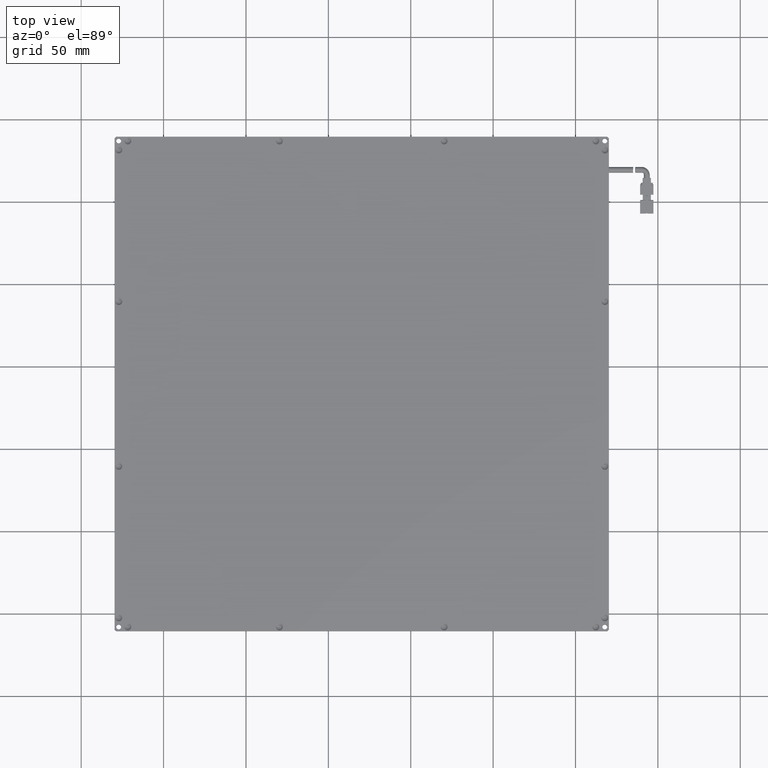
[diagram: clean part render]
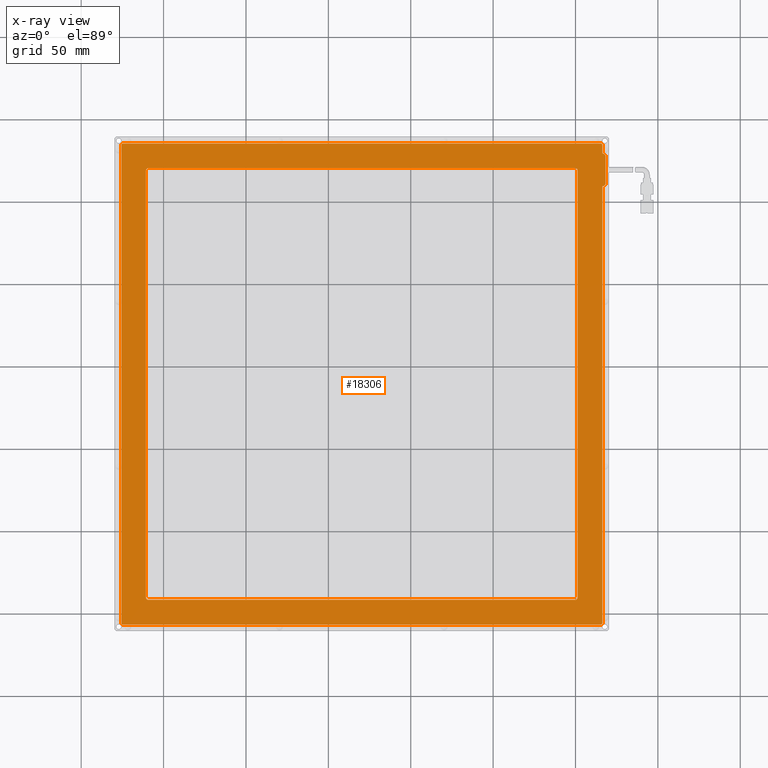
[diagram: x-ray — body ghosted, one internal face saturated and labeled with its STEP entity id]
A machine part, top view, then the same camera in x-ray: the body is ghosted and one INTERNAL B-rep face — a face not visible from any outside direction — is saturated and labeled: STEP entity #18306.
In plain terms, the highlighted planar face has unit normal (-0, 0, 1).
Its self-contained STEP definition (entity closure, byte-faithful):
#101 = DIRECTION ( 'NONE',  ( 1.191794754487883100E-016, -1.000000000000000000, -0.0000000000000000000 ) ) ;
#323 = CARTESIAN_POINT ( 'NONE',  ( -175.7273477157360200, -105.5461928934010400, -1.200000000000067900 ) ) ;
#350 = CARTESIAN_POINT ( 'NONE',  ( -174.7273477157360400, 184.4538071065989300, -1.200000000000067900 ) ) ;
#490 = DIRECTION ( 'NONE',  ( -0.0000000000000000000, 0.0000000000000000000, -1.000000000000000000 ) ) ;
#542 = VERTEX_POINT ( 'NONE', #8725 ) ;
#630 = EDGE_CURVE ( 'NONE', #7839, #13146, #11051, .T. ) ;
#916 = DIRECTION ( 'NONE',  ( -0.0000000000000000000, -1.000000000000000000, 0.0000000000000000000 ) ) ;
#1077 = VECTOR ( 'NONE', #1782, 1000.000000000000000 ) ;
#1269 = VERTEX_POINT ( 'NONE', #5665 ) ;
#1673 = CARTESIAN_POINT ( 'NONE',  ( 116.2726522842640100, 177.4538071065989600, -1.200000000000069000 ) ) ;
#1742 = VECTOR ( 'NONE', #2682, 1000.000000000000000 ) ;
#1782 = DIRECTION ( 'NONE',  ( 0.0000000000000000000, 1.000000000000000000, -0.0000000000000000000 ) ) ;
#1831 = CARTESIAN_POINT ( 'NONE',  ( 116.2726522842640100, 159.4538071065989000, -1.200000000000068800 ) ) ;
#1837 = DIRECTION ( 'NONE',  ( -1.000000000000000000, 0.0000000000000000000, 0.0000000000000000000 ) ) ;
#1974 = EDGE_CURVE ( 'NONE', #16636, #6717, #18297, .T. ) ;
#2157 = ORIENTED_EDGE ( 'NONE', *, *, #10287, .F. ) ;
#2198 = LINE ( 'NONE', #4165, #1742 ) ;
#2565 = CARTESIAN_POINT ( 'NONE',  ( -159.2273477157360400, 168.9538071065989000, -1.200000000000068100 ) ) ;
#2682 = DIRECTION ( 'NONE',  ( -2.118746230200680700E-016, 1.000000000000000000, -0.0000000000000000000 ) ) ;
#2866 = DIRECTION ( 'NONE',  ( -1.000000000000000000, -0.0000000000000000000, -0.0000000000000000000 ) ) ;
#2965 = VERTEX_POINT ( 'NONE', #16450 ) ;
#3059 = EDGE_CURVE ( 'NONE', #10920, #14318, #9591, .T. ) ;
#3104 = DIRECTION ( 'NONE',  ( 1.000000000000000000, 0.0000000000000000000, 0.0000000000000000000 ) ) ;
#3110 = EDGE_CURVE ( 'NONE', #3501, #5542, #8206, .T. ) ;
#3183 = ORIENTED_EDGE ( 'NONE', *, *, #3285, .T. ) ;
#3185 = VECTOR ( 'NONE', #101, 1000.000000000000000 ) ;
#3284 = LINE ( 'NONE', #12950, #18479 ) ;
#3285 = EDGE_CURVE ( 'NONE', #6298, #13289, #10021, .T. ) ;
#3501 = VERTEX_POINT ( 'NONE', #4743 ) ;
#3708 = ORIENTED_EDGE ( 'NONE', *, *, #16605, .T. ) ;
#3811 = CIRCLE ( 'NONE', #13130, 2.000000000000001800 ) ;
#3937 = CARTESIAN_POINT ( 'NONE',  ( -159.2273477157360400, 170.4538071065989600, -1.200000000000068100 ) ) ;
#3957 = ORIENTED_EDGE ( 'NONE', *, *, #9230, .T. ) ;
#4010 = CARTESIAN_POINT ( 'NONE',  ( 115.2726522842639600, 184.4538071065989300, -1.200000000000067900 ) ) ;
#4035 = DIRECTION ( 'NONE',  ( 1.000000000000000000, 0.0000000000000000000, 0.0000000000000000000 ) ) ;
#4084 = CARTESIAN_POINT ( 'NONE',  ( 118.2726522842640100, 161.4538071065989000, -1.200000000000068800 ) ) ;
#4115 = DIRECTION ( 'NONE',  ( -1.000000000000000000, -0.0000000000000000000, -0.0000000000000000000 ) ) ;
#4165 = CARTESIAN_POINT ( 'NONE',  ( 101.2726522842640000, 170.4538071065989600, -1.200000000000068100 ) ) ;
#4172 = EDGE_CURVE ( 'NONE', #542, #13289, #2198, .T. ) ;
#4293 = CARTESIAN_POINT ( 'NONE',  ( -175.7273477157360200, 185.4538071065989300, -1.200000000000067900 ) ) ;
#4295 = CIRCLE ( 'NONE', #18677, 1.500000000000001300 ) ;
#4351 = ORIENTED_EDGE ( 'NONE', *, *, #12041, .T. ) ;
#4390 = EDGE_CURVE ( 'NONE', #6298, #7129, #3284, .T. ) ;
#4419 = CARTESIAN_POINT ( 'NONE',  ( -160.7273477157360400, 168.9538071065989000, -1.200000000000068100 ) ) ;
#4427 = AXIS2_PLACEMENT_3D ( 'NONE', #11436, #11382, #10569 ) ;
#4451 = ORIENTED_EDGE ( 'NONE', *, *, #15115, .T. ) ;
#4487 = ORIENTED_EDGE ( 'NONE', *, *, #4172, .F. ) ;
#4726 = CARTESIAN_POINT ( 'NONE',  ( 116.2726522842640100, 184.4538071065989300, -1.200000000000067900 ) ) ;
#4743 = CARTESIAN_POINT ( 'NONE',  ( -175.7273477157360400, 184.4538071065989300, -1.200000000000067900 ) ) ;
#4873 = CARTESIAN_POINT ( 'NONE',  ( 99.77265228426398400, -91.54619289340104200, -1.200000000000068100 ) ) ;
#4886 = ORIENTED_EDGE ( 'NONE', *, *, #8150, .T. ) ;
#4959 = LINE ( 'NONE', #12052, #1077 ) ;
#5439 = ORIENTED_EDGE ( 'NONE', *, *, #18215, .T. ) ;
#5488 = DIRECTION ( 'NONE',  ( -1.000000000000000000, 0.0000000000000000000, 0.0000000000000000000 ) ) ;
#5530 = ORIENTED_EDGE ( 'NONE', *, *, #9070, .T. ) ;
#5542 = VERTEX_POINT ( 'NONE', #323 ) ;
#5652 = CIRCLE ( 'NONE', #6211, 1.000000000000000900 ) ;
#5665 = CARTESIAN_POINT ( 'NONE',  ( -159.2273477157359900, -91.54619289340104200, -1.200000000000068100 ) ) ;
#5696 = VECTOR ( 'NONE', #14007, 1000.000000000000000 ) ;
#5787 = DIRECTION ( 'NONE',  ( -0.0000000000000000000, -0.0000000000000000000, 1.000000000000000000 ) ) ;
#5984 = CARTESIAN_POINT ( 'NONE',  ( 99.77265228426394100, 170.4538071065989600, -1.200000000000068100 ) ) ;
#6058 = AXIS2_PLACEMENT_3D ( 'NONE', #1673, #11940, #3104 ) ;
#6211 = AXIS2_PLACEMENT_3D ( 'NONE', #17400, #8581, #18878 ) ;
#6298 = VERTEX_POINT ( 'NONE', #5984 ) ;
#6717 = VERTEX_POINT ( 'NONE', #11558 ) ;
#6824 = VECTOR ( 'NONE', #10422, 1000.000000000000000 ) ;
#6935 = DIRECTION ( 'NONE',  ( -0.0000000000000000000, 0.0000000000000000000, 1.000000000000000000 ) ) ;
#7129 = VERTEX_POINT ( 'NONE', #3937 ) ;
#7183 = AXIS2_PLACEMENT_3D ( 'NONE', #2565, #12874, #4035 ) ;
#7348 = EDGE_CURVE ( 'NONE', #18960, #3501, #15560, .T. ) ;
#7394 = DIRECTION ( 'NONE',  ( 0.0000000000000000000, 1.000000000000000000, -0.0000000000000000000 ) ) ;
#7519 = LINE ( 'NONE', #9028, #18792 ) ;
#7783 = ORIENTED_EDGE ( 'NONE', *, *, #13662, .T. ) ;
#7839 = VERTEX_POINT ( 'NONE', #4419 ) ;
#8081 = VERTEX_POINT ( 'NONE', #12528 ) ;
#8147 = DIRECTION ( 'NONE',  ( -0.0000000000000000000, -0.0000000000000000000, -1.000000000000000000 ) ) ;
#8150 = EDGE_CURVE ( 'NONE', #5542, #8081, #5652, .T. ) ;
#8183 = EDGE_CURVE ( 'NONE', #12494, #10133, #3811, .T. ) ;
#8189 = ORIENTED_EDGE ( 'NONE', *, *, #3110, .T. ) ;
#8206 = LINE ( 'NONE', #19036, #15585 ) ;
#8212 = EDGE_CURVE ( 'NONE', #18845, #18960, #11637, .T. ) ;
#8248 = CARTESIAN_POINT ( 'NONE',  ( 115.2726522842639600, 185.4538071065989300, -1.200000000000067900 ) ) ;
#8285 = ORIENTED_EDGE ( 'NONE', *, *, #8183, .T. ) ;
#8478 = VECTOR ( 'NONE', #7394, 1000.000000000000000 ) ;
#8581 = DIRECTION ( 'NONE',  ( -0.0000000000000000000, -0.0000000000000000000, 1.000000000000000000 ) ) ;
#8605 = CARTESIAN_POINT ( 'NONE',  ( -160.7273477157360400, 170.4538071065989600, -1.200000000000068100 ) ) ;
#8725 = CARTESIAN_POINT ( 'NONE',  ( 101.2726522842640000, -90.04619289340104200, -1.200000000000068100 ) ) ;
#8840 = CARTESIAN_POINT ( 'NONE',  ( 116.2726522842640100, -106.5461928934010400, -1.200000000000067900 ) ) ;
#8927 = CARTESIAN_POINT ( 'NONE',  ( -160.7273477157359900, -91.54619289340104200, -1.200000000000068100 ) ) ;
#9028 = CARTESIAN_POINT ( 'NONE',  ( -175.7273477157360200, -106.5461928934010400, -1.200000000000067900 ) ) ;
#9070 = EDGE_CURVE ( 'NONE', #14318, #18845, #16181, .T. ) ;
#9208 = ORIENTED_EDGE ( 'NONE', *, *, #630, .F. ) ;
#9230 = EDGE_CURVE ( 'NONE', #10133, #2965, #16319, .T. ) ;
#9237 = CARTESIAN_POINT ( 'NONE',  ( -159.2273477157359900, -90.04619289340102700, -1.200000000000068100 ) ) ;
#9591 = LINE ( 'NONE', #8840, #5696 ) ;
#9803 = PLANE ( 'NONE',  #18315 ) ;
#10021 = CIRCLE ( 'NONE', #15261, 1.500000000000001300 ) ;
#10133 = VERTEX_POINT ( 'NONE', #4084 ) ;
#10287 = EDGE_CURVE ( 'NONE', #1269, #16380, #18075, .T. ) ;
#10422 = DIRECTION ( 'NONE',  ( 1.000000000000000000, 0.0000000000000000000, -0.0000000000000000000 ) ) ;
#10569 = DIRECTION ( 'NONE',  ( -1.000000000000000000, 0.0000000000000000000, 0.0000000000000000000 ) ) ;
#10599 = DIRECTION ( 'NONE',  ( -0.0000000000000000000, -0.0000000000000000000, 1.000000000000000000 ) ) ;
#10741 = DIRECTION ( 'NONE',  ( 1.000000000000000000, 0.0000000000000000000, 0.0000000000000000000 ) ) ;
#10920 = VERTEX_POINT ( 'NONE', #18568 ) ;
#11051 = LINE ( 'NONE', #8605, #3185 ) ;
#11300 = AXIS2_PLACEMENT_3D ( 'NONE', #4010, #14301, #5488 ) ;
#11382 = DIRECTION ( 'NONE',  ( -0.0000000000000000000, -0.0000000000000000000, 1.000000000000000000 ) ) ;
#11433 = CARTESIAN_POINT ( 'NONE',  ( 115.2726522842640000, -106.5461928934010400, -1.200000000000067900 ) ) ;
#11436 = CARTESIAN_POINT ( 'NONE',  ( 115.2726522842640000, -105.5461928934009800, -1.200000000000067900 ) ) ;
#11554 = DIRECTION ( 'NONE',  ( 1.000000000000000000, 0.0000000000000000000, 0.0000000000000000000 ) ) ;
#11558 = CARTESIAN_POINT ( 'NONE',  ( 116.2726522842640100, -105.5461928934009800, -1.200000000000067900 ) ) ;
#11618 = DIRECTION ( 'NONE',  ( -0.0000000000000000000, -0.0000000000000000000, -1.000000000000000000 ) ) ;
#11637 = LINE ( 'NONE', #4293, #15075 ) ;
#11638 = CARTESIAN_POINT ( 'NONE',  ( 99.77265228426394100, 168.9538071065989000, -1.200000000000068100 ) ) ;
#11940 = DIRECTION ( 'NONE',  ( -0.0000000000000000000, -0.0000000000000000000, 1.000000000000000000 ) ) ;
#12041 = EDGE_CURVE ( 'NONE', #6717, #12494, #4959, .T. ) ;
#12052 = CARTESIAN_POINT ( 'NONE',  ( 116.2726522842640100, -106.5461928934010400, -1.200000000000067900 ) ) ;
#12112 = CIRCLE ( 'NONE', #6058, 2.000000000000001800 ) ;
#12244 = ORIENTED_EDGE ( 'NONE', *, *, #3059, .T. ) ;
#12494 = VERTEX_POINT ( 'NONE', #1831 ) ;
#12528 = CARTESIAN_POINT ( 'NONE',  ( -174.7273477157360200, -106.5461928934010400, -1.200000000000067900 ) ) ;
#12801 = FACE_BOUND ( 'NONE', #12904, .T. ) ;
#12874 = DIRECTION ( 'NONE',  ( -0.0000000000000000000, -0.0000000000000000000, -1.000000000000000000 ) ) ;
#12904 = EDGE_LOOP ( 'NONE', ( #9208, #3708, #12980, #3183, #4487, #5439, #2157, #4451 ) ) ;
#12950 = CARTESIAN_POINT ( 'NONE',  ( -160.7273477157360400, 170.4538071065989600, -1.200000000000068100 ) ) ;
#12980 = ORIENTED_EDGE ( 'NONE', *, *, #4390, .F. ) ;
#13130 = AXIS2_PLACEMENT_3D ( 'NONE', #14583, #5787, #16071 ) ;
#13139 = ORIENTED_EDGE ( 'NONE', *, *, #14247, .T. ) ;
#13146 = VERTEX_POINT ( 'NONE', #15327 ) ;
#13147 = CIRCLE ( 'NONE', #7183, 1.500000000000001300 ) ;
#13289 = VERTEX_POINT ( 'NONE', #13771 ) ;
#13336 = EDGE_LOOP ( 'NONE', ( #13826, #15544, #8189, #4886, #7783, #17763, #4351, #8285, #3957, #13139, #12244, #5530 ) ) ;
#13662 = EDGE_CURVE ( 'NONE', #8081, #16636, #7519, .T. ) ;
#13771 = CARTESIAN_POINT ( 'NONE',  ( 101.2726522842640000, 168.9538071065989000, -1.200000000000068100 ) ) ;
#13826 = ORIENTED_EDGE ( 'NONE', *, *, #8212, .T. ) ;
#14007 = DIRECTION ( 'NONE',  ( 0.0000000000000000000, 1.000000000000000000, -0.0000000000000000000 ) ) ;
#14247 = EDGE_CURVE ( 'NONE', #2965, #10920, #12112, .T. ) ;
#14301 = DIRECTION ( 'NONE',  ( -0.0000000000000000000, -0.0000000000000000000, 1.000000000000000000 ) ) ;
#14318 = VERTEX_POINT ( 'NONE', #4726 ) ;
#14583 = CARTESIAN_POINT ( 'NONE',  ( 116.2726522842640100, 161.4538071065989000, -1.200000000000069000 ) ) ;
#15075 = VECTOR ( 'NONE', #2866, 1000.000000000000000 ) ;
#15115 = EDGE_CURVE ( 'NONE', #1269, #13146, #17166, .T. ) ;
#15261 = AXIS2_PLACEMENT_3D ( 'NONE', #11638, #11618, #11554 ) ;
#15327 = CARTESIAN_POINT ( 'NONE',  ( -160.7273477157359900, -90.04619289340102700, -1.200000000000068100 ) ) ;
#15544 = ORIENTED_EDGE ( 'NONE', *, *, #7348, .T. ) ;
#15560 = CIRCLE ( 'NONE', #18973, 1.000000000000000900 ) ;
#15585 = VECTOR ( 'NONE', #916, 1000.000000000000000 ) ;
#15690 = AXIS2_PLACEMENT_3D ( 'NONE', #9237, #490, #10741 ) ;
#15742 = CARTESIAN_POINT ( 'NONE',  ( -175.7273477157360200, -106.5461928934010400, -1.200000000000067900 ) ) ;
#16071 = DIRECTION ( 'NONE',  ( 1.000000000000000000, 0.0000000000000000000, 0.0000000000000000000 ) ) ;
#16181 = CIRCLE ( 'NONE', #11300, 1.000000000000000900 ) ;
#16227 = CARTESIAN_POINT ( 'NONE',  ( 118.2726522842640100, -106.5461928934010400, -1.200000000000067900 ) ) ;
#16234 = FACE_OUTER_BOUND ( 'NONE', #13336, .T. ) ;
#16319 = LINE ( 'NONE', #16227, #8478 ) ;
#16380 = VERTEX_POINT ( 'NONE', #4873 ) ;
#16450 = CARTESIAN_POINT ( 'NONE',  ( 118.2726522842640100, 177.4538071065989600, -1.200000000000068800 ) ) ;
#16605 = EDGE_CURVE ( 'NONE', #7839, #7129, #13147, .T. ) ;
#16636 = VERTEX_POINT ( 'NONE', #11433 ) ;
#16968 = CARTESIAN_POINT ( 'NONE',  ( 99.77265228426398400, -90.04619289340104200, -1.200000000000068100 ) ) ;
#17166 = CIRCLE ( 'NONE', #15690, 1.500000000000001300 ) ;
#17216 = DIRECTION ( 'NONE',  ( 1.000000000000000000, 0.0000000000000000000, 0.0000000000000000000 ) ) ;
#17400 = CARTESIAN_POINT ( 'NONE',  ( -174.7273477157360200, -105.5461928934010400, -1.200000000000067900 ) ) ;
#17763 = ORIENTED_EDGE ( 'NONE', *, *, #1974, .T. ) ;
#17848 = DIRECTION ( 'NONE',  ( 1.000000000000000000, 0.0000000000000000000, 0.0000000000000000000 ) ) ;
#18075 = LINE ( 'NONE', #8927, #6824 ) ;
#18215 = EDGE_CURVE ( 'NONE', #542, #16380, #4295, .T. ) ;
#18297 = CIRCLE ( 'NONE', #4427, 1.000000000000000900 ) ;
#18306 = ADVANCED_FACE ( 'NONE', ( #12801, #16234 ), #9803, .T. ) ;
#18315 = AXIS2_PLACEMENT_3D ( 'NONE', #15742, #6935, #17216 ) ;
#18437 = DIRECTION ( 'NONE',  ( 1.000000000000000000, 0.0000000000000000000, 0.0000000000000000000 ) ) ;
#18479 = VECTOR ( 'NONE', #4115, 1000.000000000000000 ) ;
#18568 = CARTESIAN_POINT ( 'NONE',  ( 116.2726522842640100, 179.4538071065989600, -1.200000000000068600 ) ) ;
#18677 = AXIS2_PLACEMENT_3D ( 'NONE', #16968, #8147, #18437 ) ;
#18792 = VECTOR ( 'NONE', #17848, 1000.000000000000000 ) ;
#18845 = VERTEX_POINT ( 'NONE', #8248 ) ;
#18878 = DIRECTION ( 'NONE',  ( -1.000000000000000000, 0.0000000000000000000, 0.0000000000000000000 ) ) ;
#18907 = CARTESIAN_POINT ( 'NONE',  ( -174.7273477157360400, 185.4538071065989300, -1.200000000000067900 ) ) ;
#18960 = VERTEX_POINT ( 'NONE', #18907 ) ;
#18973 = AXIS2_PLACEMENT_3D ( 'NONE', #350, #10599, #1837 ) ;
#19036 = CARTESIAN_POINT ( 'NONE',  ( -175.7273477157360400, -106.5461928934010400, -1.200000000000067900 ) ) ;